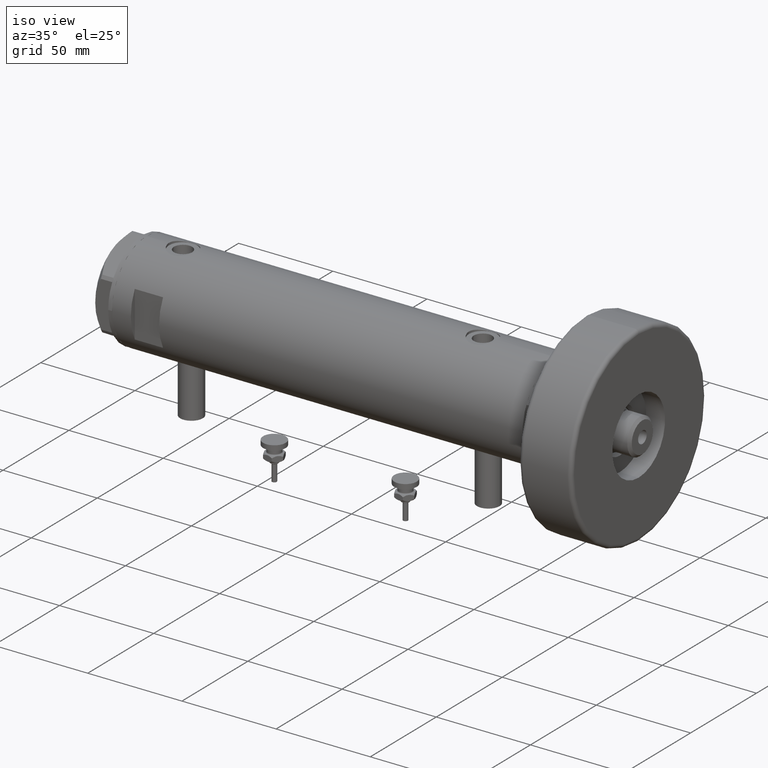
[diagram: clean part render]
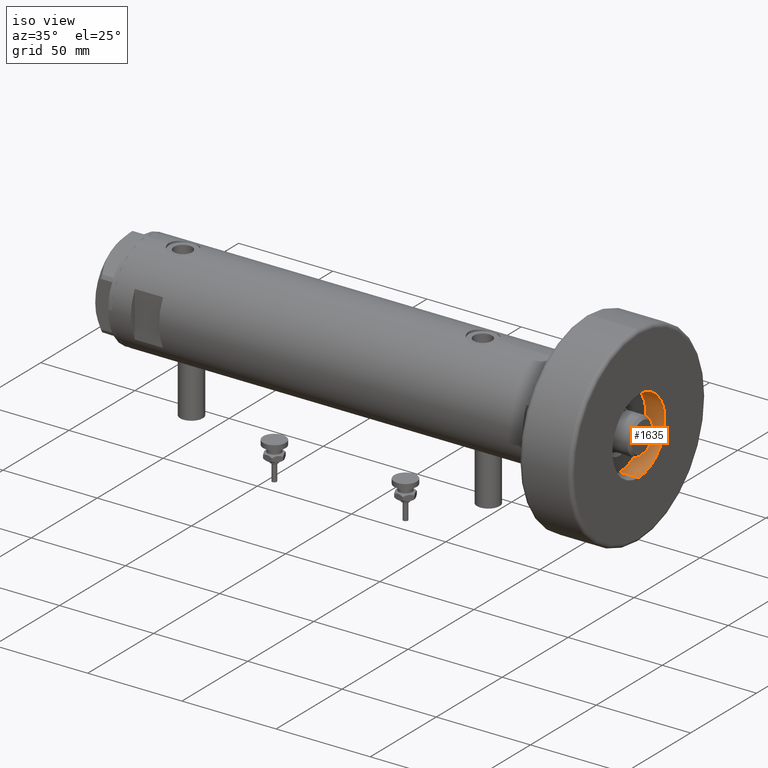
[diagram: same view with one face highlighted and labeled with its STEP entity id]
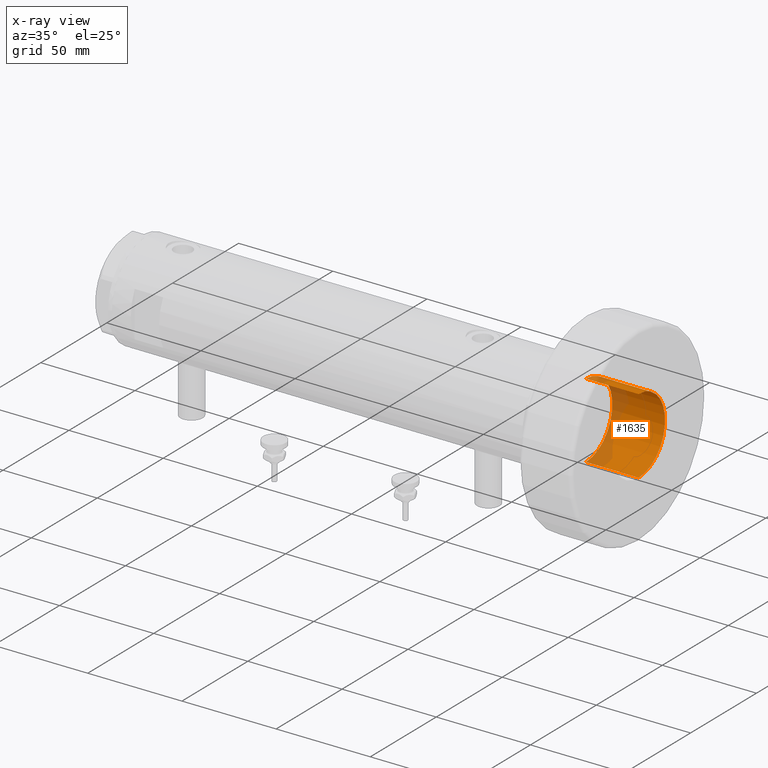
[diagram: x-ray of the same camera — body ghosted, the highlighted face saturated]
A machine part, iso view. The second image highlights one B-rep face of the part: STEP entity #1635.
The next image is the same camera in x-ray: the body ghosted, the highlighted face saturated — about 23% of this face is hidden behind the body in this view.
In plain terms, the highlighted cylindrical surface (partial cylindrical patch) has radius 20 mm, axis along (1, 0, -0).
Its self-contained STEP definition (entity closure, byte-faithful):
#28 = EDGE_CURVE ( 'NONE', #3411, #5610, #195, .T. ) ;
#139 = CARTESIAN_POINT ( 'NONE',  ( 0.000000000000000000, 0.000000000000000000, 0.000000000000000000 ) ) ;
#187 = DIRECTION ( 'NONE',  ( -0.000000000000000000, -0.000000000000000000, 1.000000000000000000 ) ) ;
#195 = CIRCLE ( 'NONE', #6592, 20.00000000000000000 ) ;
#299 = CARTESIAN_POINT ( 'NONE',  ( -20.00000000000000000, 2.449293598294706513E-15, 0.000000000000000000 ) ) ;
#425 = FACE_OUTER_BOUND ( 'NONE', #2835, .T. ) ;
#538 = VERTEX_POINT ( 'NONE', #1988 ) ;
#615 = CARTESIAN_POINT ( 'NONE',  ( -20.00000000000000000, 2.449293598294706513E-15, 28.00000000000000000 ) ) ;
#1205 = LINE ( 'NONE', #299, #1317 ) ;
#1316 = ORIENTED_EDGE ( 'NONE', *, *, #3009, .F. ) ;
#1317 = VECTOR ( 'NONE', #187, 1000.000000000000000 ) ;
#1386 = CARTESIAN_POINT ( 'NONE',  ( 20.00000000000000000, 0.000000000000000000, 0.000000000000000000 ) ) ;
#1493 = DIRECTION ( 'NONE',  ( 0.000000000000000000, 0.000000000000000000, 1.000000000000000000 ) ) ;
#1635 = ADVANCED_FACE ( 'NONE', ( #425 ), #2483, .F. ) ;
#1928 = ORIENTED_EDGE ( 'NONE', *, *, #28, .T. ) ;
#1988 = CARTESIAN_POINT ( 'NONE',  ( -20.00000000000000000, 2.449293598294706513E-15, 0.000000000000000000 ) ) ;
#2054 = AXIS2_PLACEMENT_3D ( 'NONE', #139, #3787, #3247 ) ;
#2132 = EDGE_CURVE ( 'NONE', #2235, #3411, #4366, .T. ) ;
#2235 = VERTEX_POINT ( 'NONE', #1386 ) ;
#2330 = DIRECTION ( 'NONE',  ( -0.000000000000000000, -0.000000000000000000, 1.000000000000000000 ) ) ;
#2483 = CYLINDRICAL_SURFACE ( 'NONE', #2054, 20.00000000000000000 ) ;
#2601 = VECTOR ( 'NONE', #2330, 1000.000000000000000 ) ;
#2835 = EDGE_LOOP ( 'NONE', ( #1316, #5427, #4770, #1928 ) ) ;
#3009 = EDGE_CURVE ( 'NONE', #538, #5610, #1205, .T. ) ;
#3247 = DIRECTION ( 'NONE',  ( 1.000000000000000000, 0.000000000000000000, 0.000000000000000000 ) ) ;
#3411 = VERTEX_POINT ( 'NONE', #5813 ) ;
#3493 = CARTESIAN_POINT ( 'NONE',  ( 0.000000000000000000, 0.000000000000000000, 28.00000000000000000 ) ) ;
#3787 = DIRECTION ( 'NONE',  ( -0.000000000000000000, -0.000000000000000000, 1.000000000000000000 ) ) ;
#3880 = CARTESIAN_POINT ( 'NONE',  ( 20.00000000000000000, 0.000000000000000000, 0.000000000000000000 ) ) ;
#3941 = CIRCLE ( 'NONE', #6557, 20.00000000000000000 ) ;
#4366 = LINE ( 'NONE', #3880, #2601 ) ;
#4770 = ORIENTED_EDGE ( 'NONE', *, *, #2132, .T. ) ;
#5427 = ORIENTED_EDGE ( 'NONE', *, *, #5931, .F. ) ;
#5522 = DIRECTION ( 'NONE',  ( 1.000000000000000000, 0.000000000000000000, 0.000000000000000000 ) ) ;
#5584 = DIRECTION ( 'NONE',  ( 0.000000000000000000, 0.000000000000000000, 1.000000000000000000 ) ) ;
#5610 = VERTEX_POINT ( 'NONE', #615 ) ;
#5813 = CARTESIAN_POINT ( 'NONE',  ( 20.00000000000000000, 0.000000000000000000, 28.00000000000000000 ) ) ;
#5931 = EDGE_CURVE ( 'NONE', #2235, #538, #3941, .T. ) ;
#6029 = DIRECTION ( 'NONE',  ( 1.000000000000000000, 0.000000000000000000, 0.000000000000000000 ) ) ;
#6557 = AXIS2_PLACEMENT_3D ( 'NONE', #6582, #1493, #5522 ) ;
#6582 = CARTESIAN_POINT ( 'NONE',  ( 0.000000000000000000, 0.000000000000000000, 0.000000000000000000 ) ) ;
#6592 = AXIS2_PLACEMENT_3D ( 'NONE', #3493, #5584, #6029 ) ;